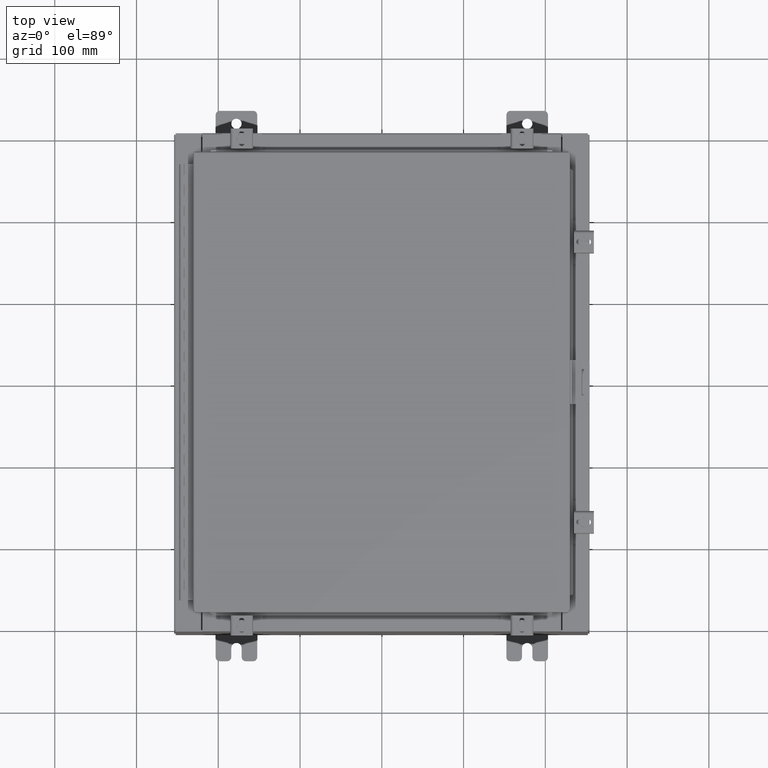
[diagram: clean part render]
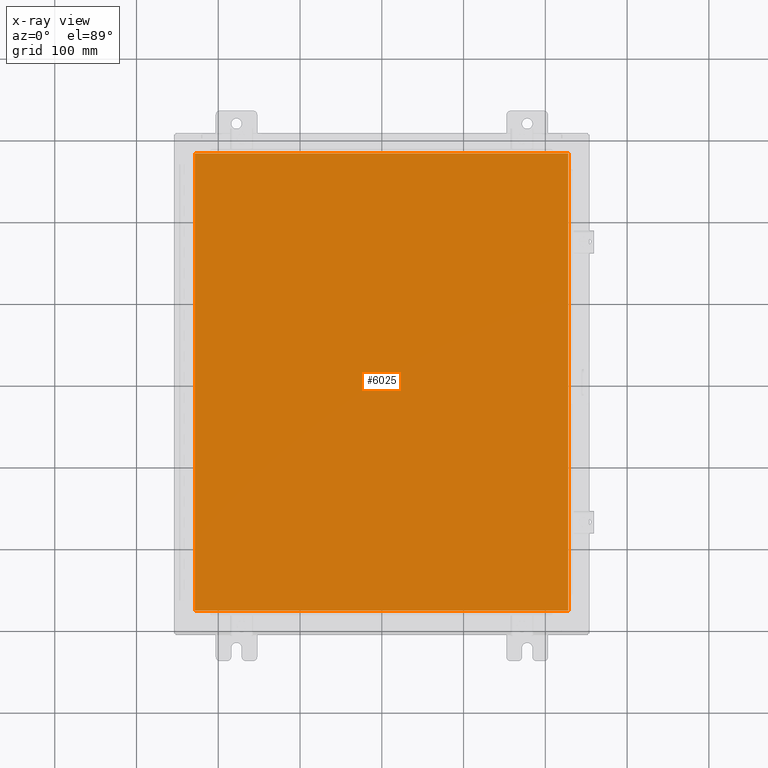
[diagram: x-ray — body ghosted, one internal face saturated and labeled with its STEP entity id]
A machine part, top view, then the same camera in x-ray: the body is ghosted and one INTERNAL B-rep face — a face not visible from any outside direction — is saturated and labeled: STEP entity #6025.
In plain terms, the highlighted planar face has unit normal (0, 0, -1).
Its self-contained STEP definition (entity closure, byte-faithful):
#1542 = DIRECTION ( 'NONE',  ( 1.000000000000000000, -0.0000000000000000000, -0.0000000000000000000 ) ) ;
#2710 = VECTOR ( 'NONE', #3881, 39.37007874015748100 ) ;
#2908 = DIRECTION ( 'NONE',  ( -1.000000000000000000, 0.0000000000000000000, -0.0000000000000000000 ) ) ;
#3047 = LINE ( 'NONE', #26087, #28108 ) ;
#3881 = DIRECTION ( 'NONE',  ( -1.000000000000000000, -0.0000000000000000000, -0.0000000000000000000 ) ) ;
#4130 = CARTESIAN_POINT ( 'NONE',  ( -8.990299999999999500, 11.00630000000000100, -0.07470000000000019700 ) ) ;
#4641 = CARTESIAN_POINT ( 'NONE',  ( 8.990299999999997700, -11.00630000000000000, -0.07470000000000000300 ) ) ;
#4778 = LINE ( 'NONE', #19046, #23919 ) ;
#6025 = ADVANCED_FACE ( 'NONE', ( #16385 ), #10305, .T. ) ;
#6268 = EDGE_CURVE ( 'NONE', #30317, #10347, #21854, .T. ) ;
#6625 = DIRECTION ( 'NONE',  ( 0.0000000000000000000, -1.000000000000000000, 0.0000000000000000000 ) ) ;
#8860 = ORIENTED_EDGE ( 'NONE', *, *, #28443, .F. ) ;
#10305 = PLANE ( 'NONE',  #21380 ) ;
#10330 = EDGE_CURVE ( 'NONE', #22455, #30317, #3047, .T. ) ;
#10347 = VERTEX_POINT ( 'NONE', #16094 ) ;
#11067 = DIRECTION ( 'NONE',  ( 0.0000000000000000000, 1.000000000000000000, 0.0000000000000000000 ) ) ;
#15201 = ORIENTED_EDGE ( 'NONE', *, *, #17362, .F. ) ;
#15349 = CARTESIAN_POINT ( 'NONE',  ( 0.0000000000000000000, 0.0000000000000000000, -0.07470000000000000300 ) ) ;
#16094 = CARTESIAN_POINT ( 'NONE',  ( -8.990299999999999500, 11.00630000000000000, -0.07470000000000000300 ) ) ;
#16385 = FACE_OUTER_BOUND ( 'NONE', #30366, .T. ) ;
#16854 = CARTESIAN_POINT ( 'NONE',  ( 8.990299999999997700, 11.00630000000000000, -0.07470000000000000300 ) ) ;
#16909 = CARTESIAN_POINT ( 'NONE',  ( -8.990299999999997700, -11.00630000000000100, -0.07470000000000000300 ) ) ;
#17362 = EDGE_CURVE ( 'NONE', #10347, #25456, #27860, .T. ) ;
#17900 = DIRECTION ( 'NONE',  ( 0.0000000000000000000, 0.0000000000000000000, -1.000000000000000000 ) ) ;
#18854 = CARTESIAN_POINT ( 'NONE',  ( 8.990299999999999500, 11.00630000000000000, -0.07470000000000019700 ) ) ;
#19046 = CARTESIAN_POINT ( 'NONE',  ( -8.990300000000001300, -11.00630000000000100, -0.07469999999999910000 ) ) ;
#19741 = ORIENTED_EDGE ( 'NONE', *, *, #10330, .F. ) ;
#21380 = AXIS2_PLACEMENT_3D ( 'NONE', #15349, #17900, #2908 ) ;
#21854 = LINE ( 'NONE', #18854, #2710 ) ;
#22455 = VERTEX_POINT ( 'NONE', #4641 ) ;
#23180 = ORIENTED_EDGE ( 'NONE', *, *, #6268, .F. ) ;
#23919 = VECTOR ( 'NONE', #1542, 39.37007874015748100 ) ;
#25456 = VERTEX_POINT ( 'NONE', #16909 ) ;
#26087 = CARTESIAN_POINT ( 'NONE',  ( 8.990299999999997700, -11.00630000000000000, -0.07470000000000019700 ) ) ;
#27048 = VECTOR ( 'NONE', #6625, 39.37007874015748100 ) ;
#27860 = LINE ( 'NONE', #4130, #27048 ) ;
#28108 = VECTOR ( 'NONE', #11067, 39.37007874015748100 ) ;
#28443 = EDGE_CURVE ( 'NONE', #25456, #22455, #4778, .T. ) ;
#30317 = VERTEX_POINT ( 'NONE', #16854 ) ;
#30366 = EDGE_LOOP ( 'NONE', ( #19741, #8860, #15201, #23180 ) ) ;